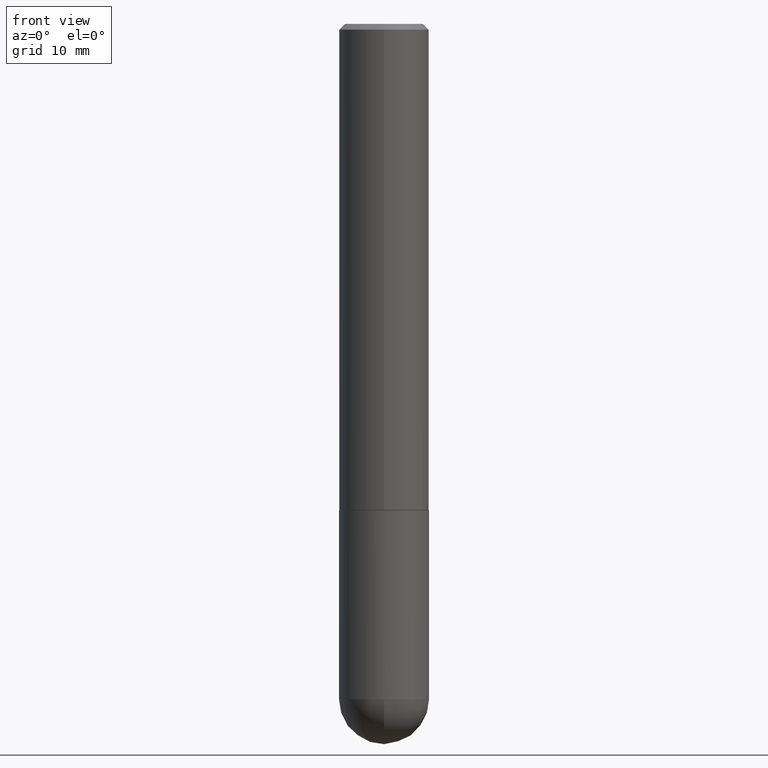
[diagram: clean part render]
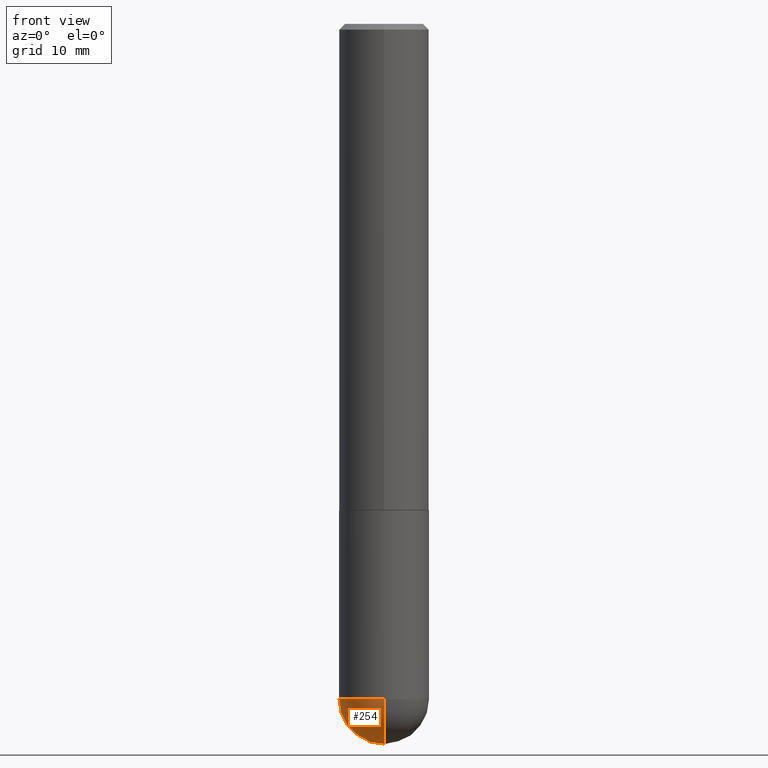
[diagram: same view with one face highlighted and labeled with its STEP entity id]
A machine part, front view. The second image highlights one B-rep face of the part: STEP entity #254.
In plain terms, the highlighted spherical surface has radius 3.9688 mm.
Its self-contained STEP definition (entity closure, byte-faithful):
#9 = CARTESIAN_POINT ( 'NONE',  ( 5.731567514496413899E-29, -8.183159387913622595E-15, -2.343750000000000000 ) ) ;
#16 = ORIENTED_EDGE ( 'NONE', *, *, #223, .F. ) ;
#18 = AXIS2_PLACEMENT_3D ( 'NONE', #135, #58, #65 ) ;
#35 = FACE_OUTER_BOUND ( 'NONE', #138, .T. ) ;
#42 = VERTEX_POINT ( 'NONE', #410 ) ;
#58 = DIRECTION ( 'NONE',  ( -1.000000000000000000, 6.982962677686265922E-15, -4.883557194083112340E-29 ) ) ;
#64 = CARTESIAN_POINT ( 'NONE',  ( 5.400447736582527652E-29, -8.657341756053672891E-15, -2.343750000000000000 ) ) ;
#65 = DIRECTION ( 'NONE',  ( 6.982962677686265922E-15, 1.000000000000000000, -3.496765431890251398E-15 ) ) ;
#74 = CARTESIAN_POINT ( 'NONE',  ( -1.110223024625101517E-15, -0.1562500000000085487, -2.343749999999999556 ) ) ;
#88 = DIRECTION ( 'NONE',  ( -2.445468806185136597E-29, 3.491481338843145583E-15, 1.000000000000000000 ) ) ;
#104 = CIRCLE ( 'NONE', #310, 0.1562500000000002498 ) ;
#119 = CIRCLE ( 'NONE', #357, 0.1562500000000000000 ) ;
#132 = DIRECTION ( 'NONE',  ( 6.982962677686265922E-15, 1.000000000000000000, 0.000000000000000000 ) ) ;
#133 = SPHERICAL_SURFACE ( 'NONE', #18, 0.1562500000000002498 ) ;
#135 = CARTESIAN_POINT ( 'NONE',  ( 5.400447736582527652E-29, -8.657341756053672891E-15, -2.343750000000000000 ) ) ;
#138 = EDGE_LOOP ( 'NONE', ( #308, #281, #248, #16 ) ) ;
#139 = CARTESIAN_POINT ( 'NONE',  ( 5.789233224183170584E-29, -9.193318162129576161E-15, -2.500000000000000000 ) ) ;
#143 = VERTEX_POINT ( 'NONE', #139 ) ;
#168 = VERTEX_POINT ( 'NONE', #262 ) ;
#193 = DIRECTION ( 'NONE',  ( 1.000000000000000000, -6.982962677686262766E-15, 0.000000000000000000 ) ) ;
#207 = AXIS2_PLACEMENT_3D ( 'NONE', #9, #88, #299 ) ;
#214 = DIRECTION ( 'NONE',  ( -1.000000000000000000, 7.105427357601001070E-15, -4.926315508542082329E-29 ) ) ;
#215 = CIRCLE ( 'NONE', #207, 0.1562500000000000000 ) ;
#223 = EDGE_CURVE ( 'NONE', #42, #168, #215, .T. ) ;
#248 = ORIENTED_EDGE ( 'NONE', *, *, #326, .F. ) ;
#249 = EDGE_CURVE ( 'NONE', #143, #42, #260, .T. ) ;
#254 = ADVANCED_FACE ( 'NONE', ( #35 ), #133, .T. ) ;
#259 = EDGE_CURVE ( 'NONE', #143, #317, #104, .T. ) ;
#260 = CIRCLE ( 'NONE', #330, 0.1562500000000002498 ) ;
#262 = CARTESIAN_POINT ( 'NONE',  ( -0.1562500000000000000, -5.928166919315270321E-15, -2.343750000000000000 ) ) ;
#267 = DIRECTION ( 'NONE',  ( -7.105427357601000281E-15, -1.000000000000000000, 0.000000000000000000 ) ) ;
#269 = DIRECTION ( 'NONE',  ( -2.445468806185136597E-29, 3.491481338843145583E-15, 1.000000000000000000 ) ) ;
#281 = ORIENTED_EDGE ( 'NONE', *, *, #259, .T. ) ;
#299 = DIRECTION ( 'NONE',  ( 1.000000000000000000, -6.982962677686262766E-15, 0.000000000000000000 ) ) ;
#308 = ORIENTED_EDGE ( 'NONE', *, *, #249, .F. ) ;
#310 = AXIS2_PLACEMENT_3D ( 'NONE', #393, #214, #267 ) ;
#317 = VERTEX_POINT ( 'NONE', #74 ) ;
#326 = EDGE_CURVE ( 'NONE', #168, #317, #119, .T. ) ;
#330 = AXIS2_PLACEMENT_3D ( 'NONE', #64, #361, #132 ) ;
#357 = AXIS2_PLACEMENT_3D ( 'NONE', #365, #269, #193 ) ;
#361 = DIRECTION ( 'NONE',  ( 1.000000000000000000, -6.982962677686265922E-15, 4.883557194083112340E-29 ) ) ;
#365 = CARTESIAN_POINT ( 'NONE',  ( 5.731567514496413899E-29, -8.183159387913622595E-15, -2.343750000000000000 ) ) ;
#393 = CARTESIAN_POINT ( 'NONE',  ( 5.400447736582527652E-29, -8.657341756053672891E-15, -2.343750000000000000 ) ) ;
#410 = CARTESIAN_POINT ( 'NONE',  ( 1.091087918388535577E-15, 0.1562499999999916733, -2.343750000000000444 ) ) ;